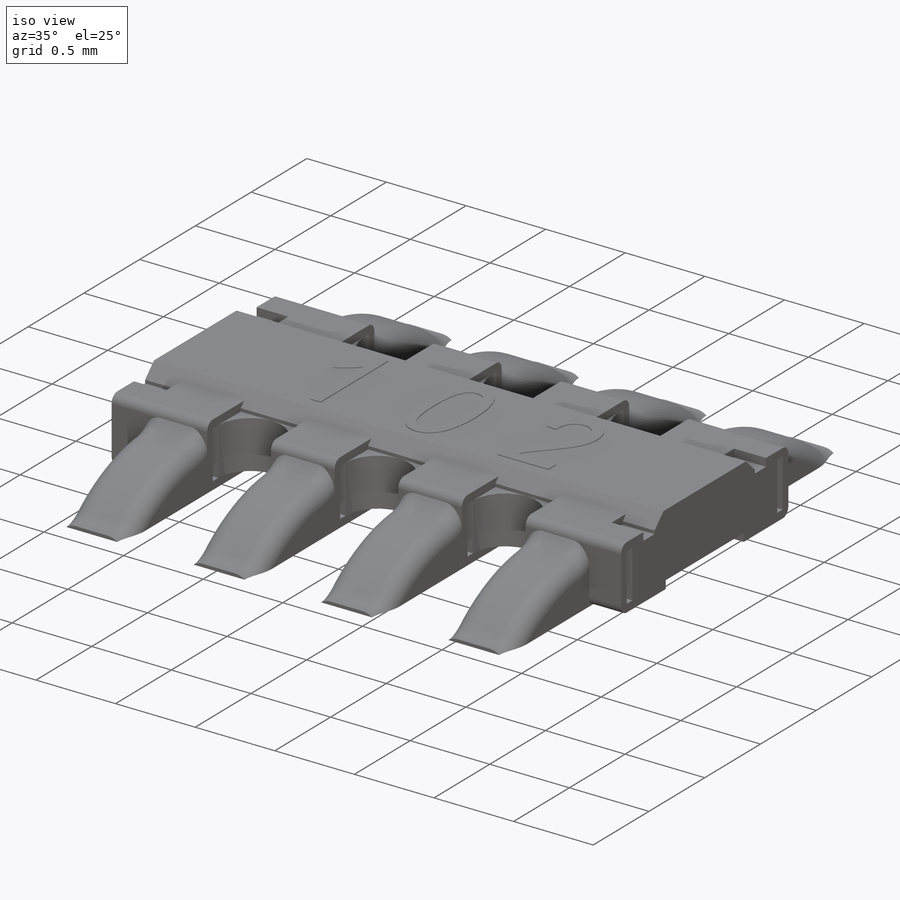
[diagram: iso view]
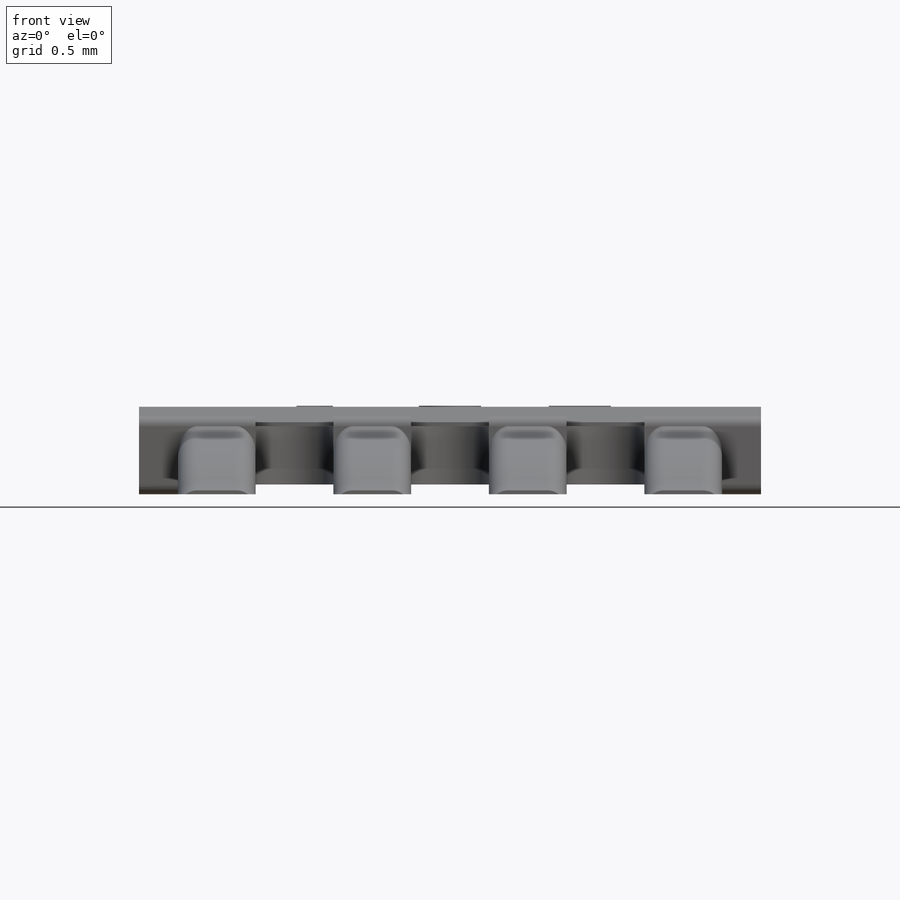
[diagram: front view]
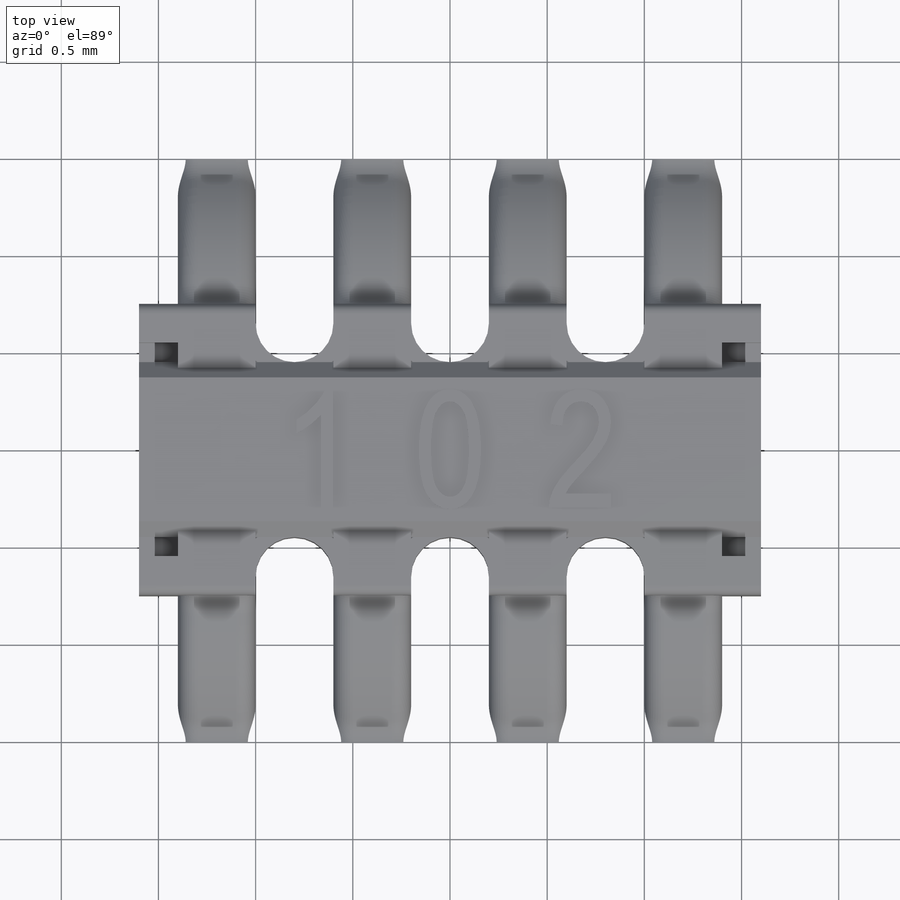
[diagram: top view]
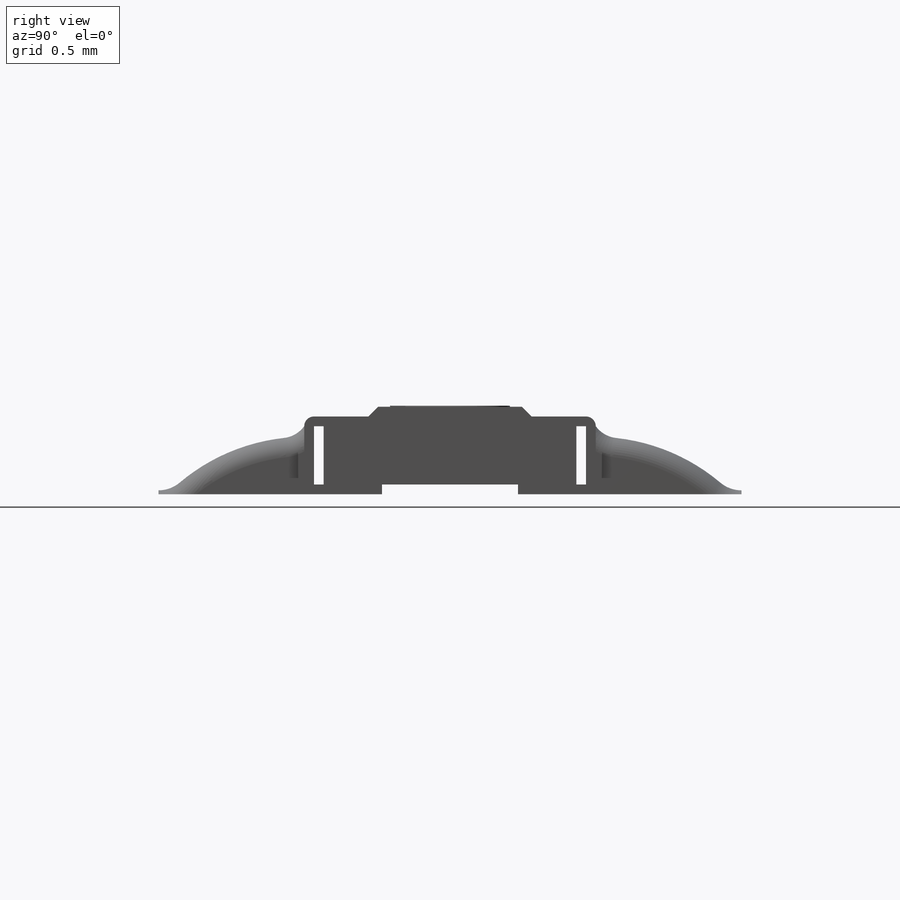
[diagram: right view]
SOLIDWORKS PART (.sldprt)
format: sldprt  version: not decoded by parser v0  size: 881,152 bytes
history: native  units: mm
features: sketch x8, extrude x4, cut_extrude x3, fillet x2, material x1, chamfer x1, plane x1, pattern_linear x1 (+11 scaffold rows collapsed)
feature tree (32):
  scaffold x11  (default folders/planes/origin — collapsed)
  material  "E-Glass Fiber"
  sketch  "Sketch5"  dims[c1.D4=0.05mm c1.D1=0.4mm c1.D2=1.5mm c1.D3=0.75mm c1.D5=0.4mm c1.D6=0.4mm c2.D1=3.2mm c2.D5=0.05mm c2.D6=10.0mm c2.D7=5.0mm]
  sketch  "Sketch6"  dims[c1.D1=0.4mm c1.D2=0.8mm c1.D3=0.2mm c1.D4=0.2mm c1.D5=0.8mm c1.D6=0.3mm c2.D1=0.5mm c2.D2=0.4mm c2.D3=0.8mm c2.D4=0.2mm c2.D5=0.8mm c2.D6=0.4mm c2.D7=0.4mm c2.D8=0.6mm c2.D9=0.4mm c2.D10=0.4mm c2.D11=0.2mm]
  cut_extrude  "Cut-Extrude3"  [1 undecoded]
  sketch  "Sketch7"  dims[c1.D1=0.2mm c1.D2=0.2mm c1.D3=0.2mm c2.D1=0.55mm c2.D2=1.1mm]
  cut_extrude  "Cut-Extrude4"  Depth=0.1mm
  sketch  "Sketch1"  dims[c1.D3=0.3mm c1.D1=3.2mm c1.D2=1.3mm c1.D4=0.8mm c1.D5=0.8mm c1.D6=0.8mm c1.D7=0.4mm c1.D8=0.6mm c1.D9=0.5mm c2.D3=0.3mm c2.D4=0.5mm c3.D3=0.2mm c3.D4=0.2mm c3.D5=0.8mm c3.D6=0.8mm c3.D7=0.8mm c3.D8=0.4mm c3.D9=0.5mm c3.D10=0.5mm c3.D11=0.5mm c3.D12=0.5mm]
  extrude  "Boss-Extrude3"  Depth=0.3mm
  sketch  "Sketch9"
  extrude  "Boss-Extrude4"  Depth=0.1mm
  chamfer  "Chamfer1"  Distance=0.08mm Angle=45deg
  sketch  "Sketch10"  dims[D3=0.4mm D1=0.8mm D2=0.8mm]
  cut_extrude  "Cut-Extrude7"  Depth=5mm
  sketch  "Sketch11"  dims[D1=0.86mm D2=0.3mm]
  extrude  "Boss-Extrude5"  Depth=0.005mm
  plane  "Plane1"  Offset=1.2mm
  sketch  "Sketch12"  dims[c1.D2=0.15mm c1.D3=0.17mm c1.D4=1.0mm c1.D1=0.02mm c2.D2=~0.13228mm c2.D5=1.5mm c2.D6=~0.704658mm c2.D7=1.5mm]
  extrude  "Boss-Extrude6"  Depth=0.4mm
  fillet  "Fillet1"  Radius=0.1mm
  fillet  "Fillet2"  Radius=0.1mm
  pattern_linear  "LPattern3"  Count1=4 Count2=1 Spacing1=0.8mm Spacing2=10mm
decode coverage: 17 of 19 modeling features carry decoded parameters
note: ~ marks probable driven/reference dimensions
note: 1 parameter value undecoded
note: suppression state not decoded; provenance and decode notes live in map.json
